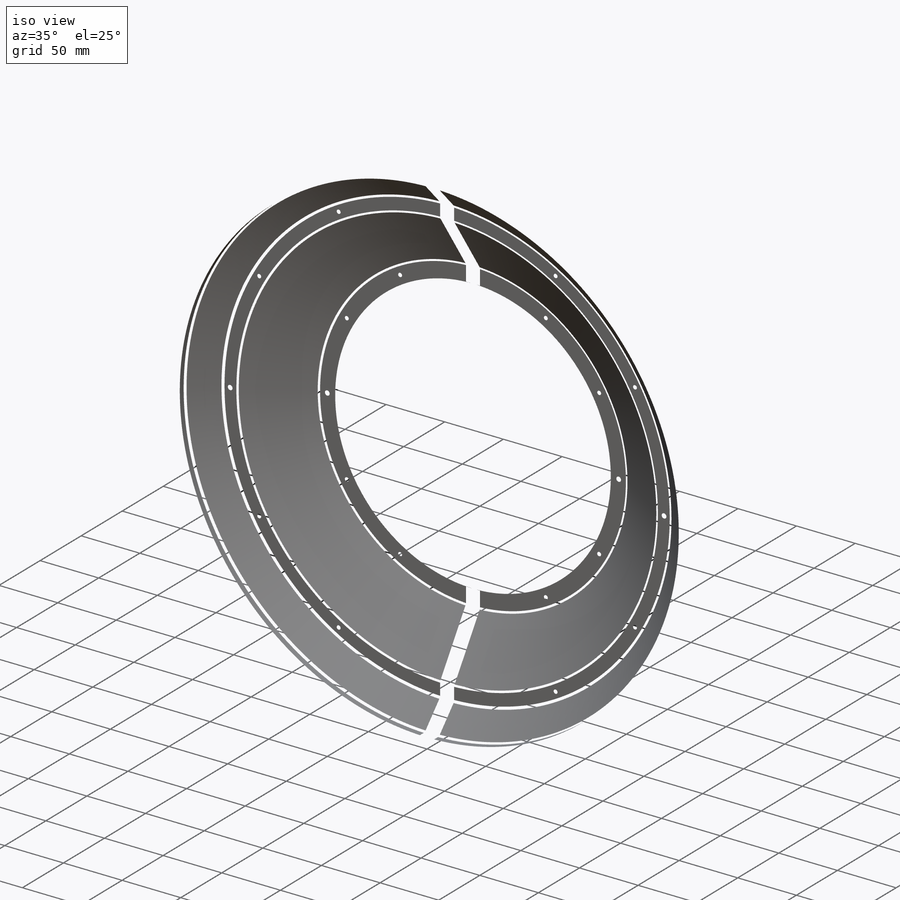
[diagram: iso view]
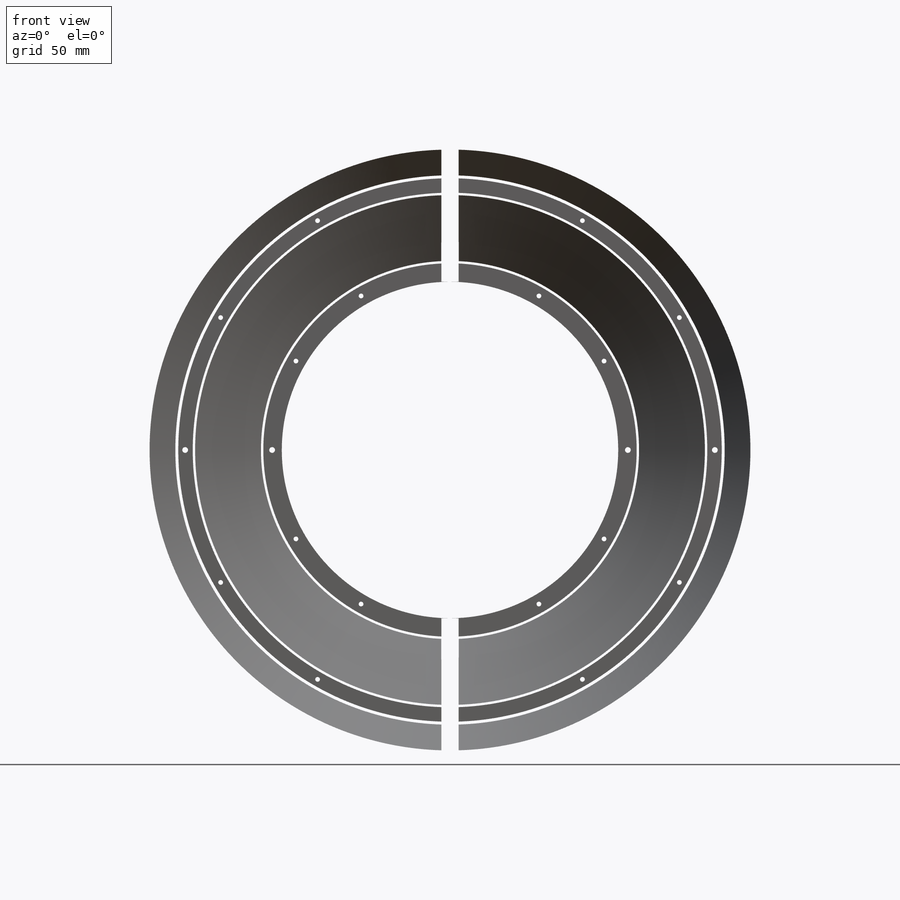
[diagram: front view]
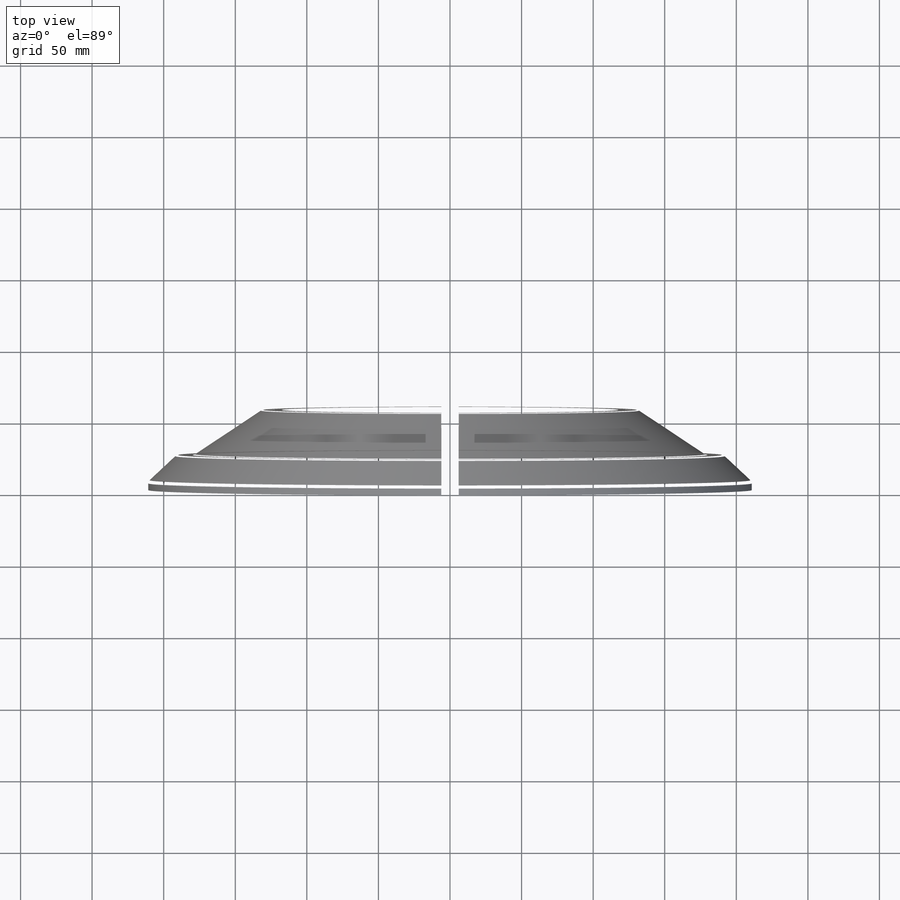
[diagram: top view]
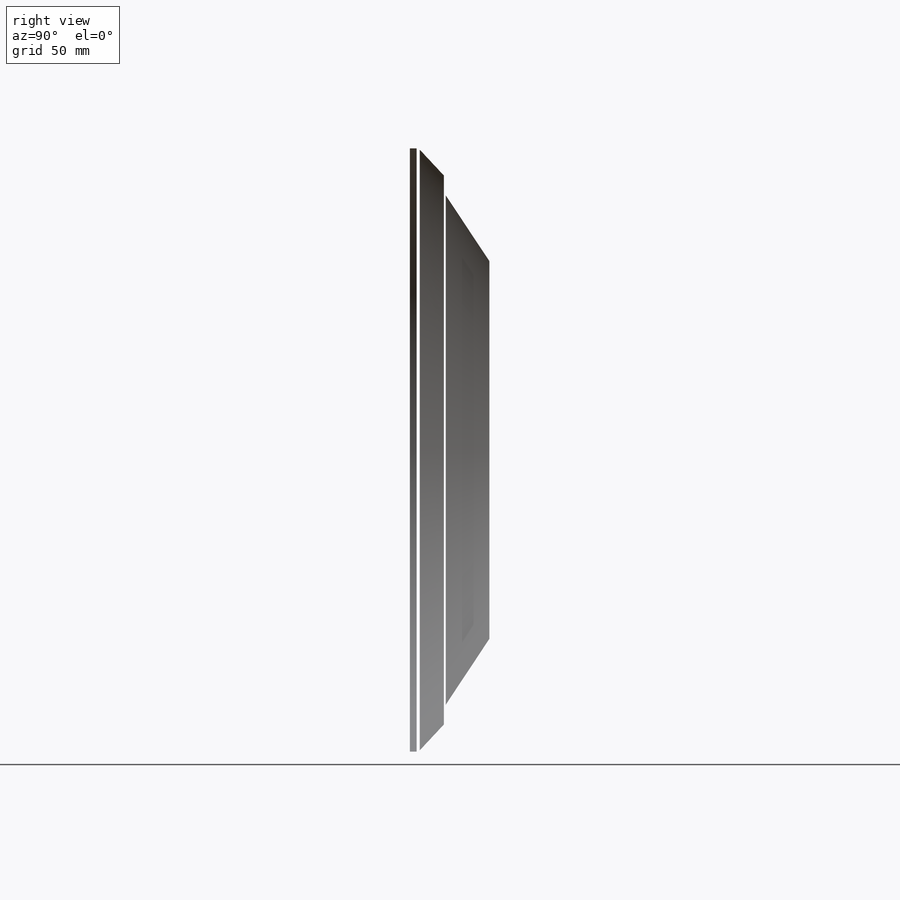
[diagram: right view]
SOLIDWORKS PART (.sldprt)
format: sldprt  version: not decoded by parser v0  size: 12,690,944 bytes
history: native  units: mm
features: sketch x14, hole x5, pattern_circular x4, extrude x3, thread x3, material x1, revolve x1, mirror x1 (+11 scaffold rows collapsed)
feature tree (43):
  scaffold x11  (default folders/planes/origin — collapsed)
  material  "6061-T6 (SS)"
  sketch  "Sketch2"  dims[c1.D1=12.0mm c1.D2=4.0mm c1.D3=4.0mm c1.D4=12.0mm c1.D5=12.0mm c1.D6=25.0mm c1.D7=214.2mm c1.D8=117.5mm c1.D9=6.0mm c1.D10=6.0mm c1.D11=10.5mm c1.D12=62.0mm c1.D13=16.0mm c1.D14=6.0mm c1.D15=0.0mm c2.D13=30.5mm c2.D16=454.65mm c2.D6=~0.712518mm c2.D4=12.0mm c3.D6=370.0mm c3.D7=444.0mm c3.D11=10.65mm c3.D4=6.0mm c3.D15=354.0mm c3.D17=248.5mm]
  revolve  "Revolve2"  Angle=360deg
  sketch  "Sketch5"  dims[D1=28.0mm]
  extrude  "Extrude1"  Depth=2mm
  sketch  "Sketch15"  dims[c1.D1=1.0mm c1.D2=~2.164096mm c2.D2=45.0deg]
  extrude  "Boss-Extrude1"  [1 undecoded]
  mirror  "Mirror1"
  hole  "M4x0.7 Tapped Hole2"  Diameter=3.3mm Depth=10.1mm
  sketch  "3DSketch1"
  sketch  "Sketch9"  dims[hole-wizard template sketch: 50 standard entries collapsed; hole parameters above]
  thread  "Hole Thread2"  Diameter=8mm  [1 undecoded]
  thread  "Hole Thread3"  Diameter=8mm  [1 undecoded]
  pattern_circular  "CirPattern1"  Count=12 Angle=30deg
  hole  "M4 Clearance Hole1"  Diameter=4.5mm Depth=8.5mm
  sketch  "Sketch12"
  sketch  "Sketch11"  dims[hole-wizard template sketch: 47 standard entries collapsed; hole parameters kept: c15.Hole Depth=8.5mm c15.D3=~14.816244mm c15.Drill Angle=118.0deg]
  pattern_circular  "CirPattern2"  Count=24 Angle=360deg
  hole  "Ø4.0 (4) Diameter Hole1"  Diameter=4mm Depth=8.5mm
  sketch  "3DSketch2"
  sketch  "Sketch13"  dims[hole-wizard template sketch: 47 standard entries collapsed; hole parameters kept: c15.Hole Depth=8.5mm c15.D3=~14.816244mm c15.Drill Angle=118.0deg]
  sketch  "Sketch16"  dims[D1=8.0mm D2=208.0mm]
  extrude  "Boss-Extrude2"  [1 undecoded]
  hole  "M4x0.7 Tapped Hole3"  Diameter=3.3mm Depth=11.5mm
  sketch  "Sketch18"
  sketch  "Sketch17"  dims[hole-wizard template sketch: 47 standard entries collapsed; hole parameters kept: c15.Tap Drill Depth=11.5mm c15.D3=~14.816244mm c15.Drill Angle=118.0deg]
  thread  "Hole Thread4"  Diameter=8mm  [1 undecoded]
  pattern_circular  "CirPattern3"  Count=12 Angle=360deg
  pattern_circular  "CirPattern4"  Count=12 Angle=360deg
  hole  "Ø4.0 (4) Diameter Hole2"  Diameter=4mm Depth=6mm
  sketch  "Sketch20"
  sketch  "Sketch19"  dims[hole-wizard template sketch: 47 standard entries collapsed; hole parameters kept: c15.Hole Depth=6.0mm c15.D3=~14.816244mm c15.Drill Angle=118.0deg]
decode coverage: 23 of 31 modeling features carry decoded parameters
note: ~ marks probable driven/reference dimensions
note: 5 parameter values undecoded
summary: Diameter pulled from absorbed wizard sketch
note: suppression state not decoded; provenance and decode notes live in map.json
